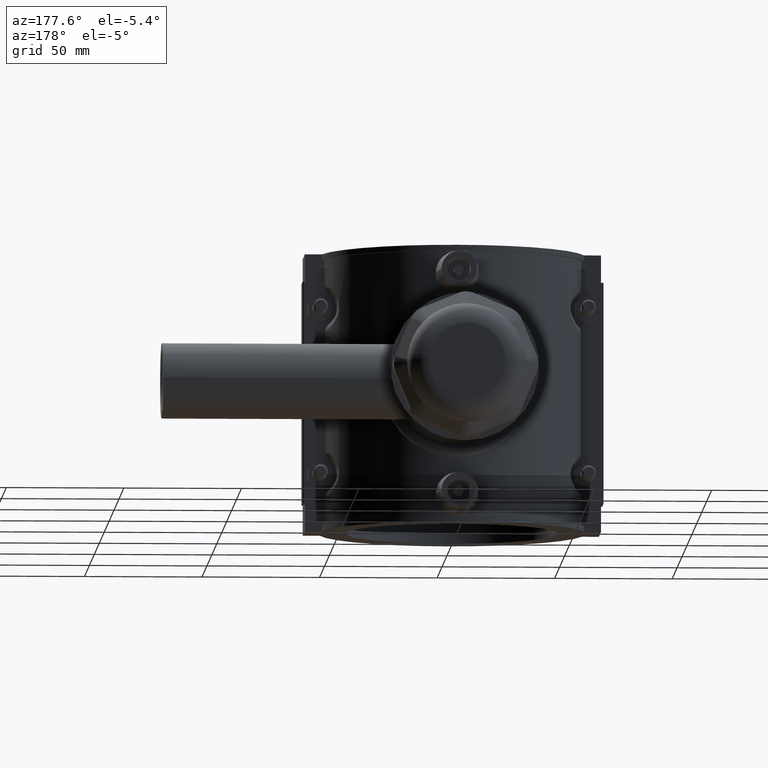
[diagram: clean part render]
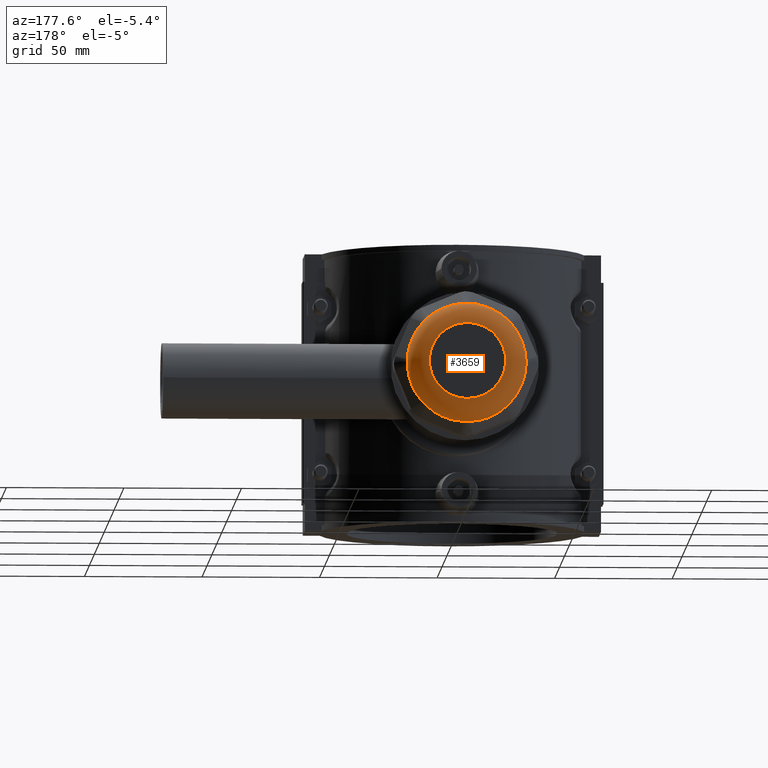
[diagram: same view with one face highlighted and labeled with its STEP entity id]
A machine part, auxiliary view. The second image highlights one B-rep face of the part: STEP entity #3659.
In plain terms, the highlighted toroidal blend (fillet) surface has major radius 16.258 mm and minor (blend) radius 9 mm.
Its self-contained STEP definition (entity closure, byte-faithful):
#15=TOROIDAL_SURFACE('',#3901,16.2579868038568,9.);
#802=CIRCLE('',#3874,25.2);
#803=CIRCLE('',#3876,25.2);
#804=CIRCLE('',#3878,25.2);
#805=CIRCLE('',#3880,25.2);
#806=CIRCLE('',#3882,25.2);
#807=CIRCLE('',#3884,25.2);
#808=CIRCLE('',#3886,25.2);
#809=CIRCLE('',#3888,25.2);
#814=CIRCLE('',#3902,16.2579868038568);
#911=FACE_BOUND('',#1241,.T.);
#1010=FACE_OUTER_BOUND('',#1240,.T.);
#1240=EDGE_LOOP('',(#2662,#2663,#2664,#2665,#2666,#2667,#2668,#2669,#2670,
#2671,#2672,#2673,#2674,#2675,#2676,#2677,#2678,#2679,#2680,#2681,#2682,
#2683,#2684,#2685,#2686,#2687,#2688,#2689,#2690,#2691,#2692,#2693));
#1241=EDGE_LOOP('',(#2694));
#1466=B_SPLINE_CURVE_WITH_KNOTS('',3,(#5428,#5429,#5430,#5431),
 .UNSPECIFIED.,.F.,.F.,(4,4),(1.10952605519266,1.15275513340129),
 .UNSPECIFIED.);
#1468=B_SPLINE_CURVE_WITH_KNOTS('',3,(#5464,#5465,#5466,#5467),
 .UNSPECIFIED.,.F.,.F.,(4,4),(0.,0.0290429635473204),.UNSPECIFIED.);
#1470=B_SPLINE_CURVE_WITH_KNOTS('',3,(#5475,#5476,#5477,#5478,#5479,#5480,
#5481,#5482,#5483,#5484,#5485,#5486,#5487,#5488,#5489),.UNSPECIFIED.,.F.,
 .F.,(4,2,2,3,2,2,4),(5.42572388868574,5.52255212576806,5.88350145939651,
6.24445079302495,6.6054001266534,6.96634946028184,7.06317769736321),
 .UNSPECIFIED.);
#1471=B_SPLINE_CURVE_WITH_KNOTS('',3,(#5508,#5509,#5510,#5511),
 .UNSPECIFIED.,.F.,.F.,(4,4),(1.10952605519264,1.15275513340128),
 .UNSPECIFIED.);
#1473=B_SPLINE_CURVE_WITH_KNOTS('',3,(#5544,#5545,#5546,#5547),
 .UNSPECIFIED.,.F.,.F.,(4,4),(0.,0.0290429635473214),.UNSPECIFIED.);
#1475=B_SPLINE_CURVE_WITH_KNOTS('',3,(#5555,#5556,#5557,#5558,#5559,#5560,
#5561,#5562,#5563,#5564,#5565,#5566,#5567,#5568,#5569),.UNSPECIFIED.,.F.,
 .F.,(4,2,2,3,2,2,4),(5.4257238886857,5.52255212576751,5.8835014593962,
6.2444507930249,6.60540012665359,6.96634946028229,7.06317769736314),
 .UNSPECIFIED.);
#1476=B_SPLINE_CURVE_WITH_KNOTS('',3,(#5588,#5589,#5590,#5591),
 .UNSPECIFIED.,.F.,.F.,(4,4),(1.10952605519268,1.15275513340131),
 .UNSPECIFIED.);
#1478=B_SPLINE_CURVE_WITH_KNOTS('',3,(#5624,#5625,#5626,#5627),
 .UNSPECIFIED.,.F.,.F.,(4,4),(0.,0.0290429635473215),.UNSPECIFIED.);
#1480=B_SPLINE_CURVE_WITH_KNOTS('',3,(#5635,#5636,#5637,#5638,#5639,#5640,
#5641,#5642,#5643,#5644,#5645,#5646,#5647,#5648,#5649),.UNSPECIFIED.,.F.,
 .F.,(4,2,2,3,2,2,4),(5.42572388868572,5.52255212576752,5.88350145939621,
6.24445079302491,6.60540012665361,6.9663494602823,7.06317769736315),
 .UNSPECIFIED.);
#1481=B_SPLINE_CURVE_WITH_KNOTS('',3,(#5668,#5669,#5670,#5671),
 .UNSPECIFIED.,.F.,.F.,(4,4),(1.10952605519258,1.15275513340122),
 .UNSPECIFIED.);
#1483=B_SPLINE_CURVE_WITH_KNOTS('',3,(#5704,#5705,#5706,#5707),
 .UNSPECIFIED.,.F.,.F.,(4,4),(0.,0.0290429635473217),.UNSPECIFIED.);
#1485=B_SPLINE_CURVE_WITH_KNOTS('',3,(#5715,#5716,#5717,#5718,#5719,#5720,
#5721,#5722,#5723,#5724,#5725,#5726,#5727,#5728,#5729),.UNSPECIFIED.,.F.,
 .F.,(4,2,2,3,2,2,4),(5.42572388868572,5.52255212576753,5.88350145939622,
6.24445079302491,6.60540012665361,6.9663494602823,7.06317769736315),
 .UNSPECIFIED.);
#1486=B_SPLINE_CURVE_WITH_KNOTS('',3,(#5748,#5749,#5750,#5751),
 .UNSPECIFIED.,.F.,.F.,(4,4),(1.10952605519257,1.15275513340121),
 .UNSPECIFIED.);
#1488=B_SPLINE_CURVE_WITH_KNOTS('',3,(#5784,#5785,#5786,#5787),
 .UNSPECIFIED.,.F.,.F.,(4,4),(0.,0.0290429635473215),.UNSPECIFIED.);
#1490=B_SPLINE_CURVE_WITH_KNOTS('',3,(#5795,#5796,#5797,#5798,#5799,#5800,
#5801,#5802,#5803,#5804,#5805,#5806,#5807,#5808,#5809),.UNSPECIFIED.,.F.,
 .F.,(4,2,2,3,2,2,4),(5.42572388868571,5.52255212576752,5.88350145939622,
6.24445079302491,6.6054001266536,6.9663494602823,7.06317769736315),
 .UNSPECIFIED.);
#1491=B_SPLINE_CURVE_WITH_KNOTS('',3,(#5828,#5829,#5830,#5831),
 .UNSPECIFIED.,.F.,.F.,(4,4),(1.10952605519261,1.15275513340124),
 .UNSPECIFIED.);
#1493=B_SPLINE_CURVE_WITH_KNOTS('',3,(#5864,#5865,#5866,#5867),
 .UNSPECIFIED.,.F.,.F.,(4,4),(0.,0.0290429635473217),.UNSPECIFIED.);
#1495=B_SPLINE_CURVE_WITH_KNOTS('',3,(#5875,#5876,#5877,#5878,#5879,#5880,
#5881,#5882,#5883,#5884,#5885,#5886,#5887,#5888,#5889),.UNSPECIFIED.,.F.,
 .F.,(4,2,2,3,2,2,4),(5.42572388868574,5.52255212576806,5.8835014593965,
6.24445079302494,6.60540012665339,6.96634946028183,7.0631776973632),
 .UNSPECIFIED.);
#1496=B_SPLINE_CURVE_WITH_KNOTS('',3,(#5908,#5909,#5910,#5911),
 .UNSPECIFIED.,.F.,.F.,(4,4),(1.10952605519264,1.15275513340129),
 .UNSPECIFIED.);
#1498=B_SPLINE_CURVE_WITH_KNOTS('',3,(#5944,#5945,#5946,#5947),
 .UNSPECIFIED.,.F.,.F.,(4,4),(0.,0.0290429635473226),.UNSPECIFIED.);
#1500=B_SPLINE_CURVE_WITH_KNOTS('',3,(#5955,#5956,#5957,#5958,#5959,#5960,
#5961,#5962,#5963,#5964,#5965,#5966,#5967,#5968,#5969),.UNSPECIFIED.,.F.,
 .F.,(4,2,2,3,2,2,4),(5.42572388868571,5.52255212576752,5.88350145939622,
6.24445079302491,6.6054001266536,6.96634946028229,7.06317769736315),
 .UNSPECIFIED.);
#1501=B_SPLINE_CURVE_WITH_KNOTS('',3,(#5988,#5989,#5990,#5991),
 .UNSPECIFIED.,.F.,.F.,(4,4),(1.10952605519263,1.15275513340125),
 .UNSPECIFIED.);
#1503=B_SPLINE_CURVE_WITH_KNOTS('',3,(#6015,#6016,#6017,#6018),
 .UNSPECIFIED.,.F.,.F.,(4,4),(0.,0.0290429635473208),.UNSPECIFIED.);
#1505=B_SPLINE_CURVE_WITH_KNOTS('',3,(#6026,#6027,#6028,#6029,#6030,#6031,
#6032,#6033,#6034,#6035,#6036,#6037,#6038,#6039,#6040),.UNSPECIFIED.,.F.,
 .F.,(4,2,2,3,2,2,4),(5.42572388868569,5.52255212576751,5.8835014593962,
6.24445079302489,6.60540012665358,6.96634946028228,7.06317769736313),
 .UNSPECIFIED.);
#1584=VERTEX_POINT('',#5404);
#1585=VERTEX_POINT('',#5406);
#1587=VERTEX_POINT('',#5427);
#1590=VERTEX_POINT('',#5440);
#1591=VERTEX_POINT('',#5442);
#1593=VERTEX_POINT('',#5463);
#1595=VERTEX_POINT('',#5507);
#1598=VERTEX_POINT('',#5520);
#1599=VERTEX_POINT('',#5522);
#1601=VERTEX_POINT('',#5543);
#1603=VERTEX_POINT('',#5587);
#1606=VERTEX_POINT('',#5600);
#1607=VERTEX_POINT('',#5602);
#1609=VERTEX_POINT('',#5623);
#1611=VERTEX_POINT('',#5667);
#1614=VERTEX_POINT('',#5680);
#1615=VERTEX_POINT('',#5682);
#1617=VERTEX_POINT('',#5703);
#1619=VERTEX_POINT('',#5747);
#1622=VERTEX_POINT('',#5760);
#1623=VERTEX_POINT('',#5762);
#1625=VERTEX_POINT('',#5783);
#1627=VERTEX_POINT('',#5827);
#1630=VERTEX_POINT('',#5840);
#1631=VERTEX_POINT('',#5842);
#1633=VERTEX_POINT('',#5863);
#1635=VERTEX_POINT('',#5907);
#1638=VERTEX_POINT('',#5920);
#1639=VERTEX_POINT('',#5922);
#1641=VERTEX_POINT('',#5943);
#1643=VERTEX_POINT('',#5987);
#1645=VERTEX_POINT('',#6014);
#1656=VERTEX_POINT('',#6093);
#1941=EDGE_CURVE('',#1585,#1587,#1466,.F.);
#1948=EDGE_CURVE('',#1593,#1590,#1468,.F.);
#1951=EDGE_CURVE('',#1587,#1593,#1470,.F.);
#1953=EDGE_CURVE('',#1591,#1595,#1471,.F.);
#1960=EDGE_CURVE('',#1601,#1598,#1473,.F.);
#1963=EDGE_CURVE('',#1595,#1601,#1475,.F.);
#1965=EDGE_CURVE('',#1599,#1603,#1476,.F.);
#1972=EDGE_CURVE('',#1609,#1606,#1478,.F.);
#1975=EDGE_CURVE('',#1603,#1609,#1480,.F.);
#1977=EDGE_CURVE('',#1607,#1611,#1481,.F.);
#1984=EDGE_CURVE('',#1617,#1614,#1483,.F.);
#1987=EDGE_CURVE('',#1611,#1617,#1485,.F.);
#1989=EDGE_CURVE('',#1615,#1619,#1486,.F.);
#1996=EDGE_CURVE('',#1625,#1622,#1488,.F.);
#1999=EDGE_CURVE('',#1619,#1625,#1490,.F.);
#2001=EDGE_CURVE('',#1623,#1627,#1491,.F.);
#2008=EDGE_CURVE('',#1633,#1630,#1493,.F.);
#2011=EDGE_CURVE('',#1627,#1633,#1495,.F.);
#2013=EDGE_CURVE('',#1631,#1635,#1496,.F.);
#2020=EDGE_CURVE('',#1641,#1638,#1498,.F.);
#2023=EDGE_CURVE('',#1635,#1641,#1500,.F.);
#2025=EDGE_CURVE('',#1639,#1643,#1501,.F.);
#2028=EDGE_CURVE('',#1645,#1584,#1503,.F.);
#2031=EDGE_CURVE('',#1643,#1645,#1505,.F.);
#2033=EDGE_CURVE('',#1607,#1606,#802,.T.);
#2034=EDGE_CURVE('',#1599,#1598,#803,.T.);
#2035=EDGE_CURVE('',#1591,#1590,#804,.T.);
#2036=EDGE_CURVE('',#1585,#1584,#805,.T.);
#2037=EDGE_CURVE('',#1639,#1638,#806,.T.);
#2038=EDGE_CURVE('',#1631,#1630,#807,.T.);
#2039=EDGE_CURVE('',#1623,#1622,#808,.T.);
#2040=EDGE_CURVE('',#1615,#1614,#809,.T.);
#2058=EDGE_CURVE('',#1656,#1656,#814,.T.);
#2662=ORIENTED_EDGE('',*,*,#2035,.T.);
#2663=ORIENTED_EDGE('',*,*,#1948,.F.);
#2664=ORIENTED_EDGE('',*,*,#1951,.F.);
#2665=ORIENTED_EDGE('',*,*,#1941,.F.);
#2666=ORIENTED_EDGE('',*,*,#2036,.T.);
#2667=ORIENTED_EDGE('',*,*,#2028,.F.);
#2668=ORIENTED_EDGE('',*,*,#2031,.F.);
#2669=ORIENTED_EDGE('',*,*,#2025,.F.);
#2670=ORIENTED_EDGE('',*,*,#2037,.T.);
#2671=ORIENTED_EDGE('',*,*,#2020,.F.);
#2672=ORIENTED_EDGE('',*,*,#2023,.F.);
#2673=ORIENTED_EDGE('',*,*,#2013,.F.);
#2674=ORIENTED_EDGE('',*,*,#2038,.T.);
#2675=ORIENTED_EDGE('',*,*,#2008,.F.);
#2676=ORIENTED_EDGE('',*,*,#2011,.F.);
#2677=ORIENTED_EDGE('',*,*,#2001,.F.);
#2678=ORIENTED_EDGE('',*,*,#2039,.T.);
#2679=ORIENTED_EDGE('',*,*,#1996,.F.);
#2680=ORIENTED_EDGE('',*,*,#1999,.F.);
#2681=ORIENTED_EDGE('',*,*,#1989,.F.);
#2682=ORIENTED_EDGE('',*,*,#2040,.T.);
#2683=ORIENTED_EDGE('',*,*,#1984,.F.);
#2684=ORIENTED_EDGE('',*,*,#1987,.F.);
#2685=ORIENTED_EDGE('',*,*,#1977,.F.);
#2686=ORIENTED_EDGE('',*,*,#2033,.T.);
#2687=ORIENTED_EDGE('',*,*,#1972,.F.);
#2688=ORIENTED_EDGE('',*,*,#1975,.F.);
#2689=ORIENTED_EDGE('',*,*,#1965,.F.);
#2690=ORIENTED_EDGE('',*,*,#2034,.T.);
#2691=ORIENTED_EDGE('',*,*,#1960,.F.);
#2692=ORIENTED_EDGE('',*,*,#1963,.F.);
#2693=ORIENTED_EDGE('',*,*,#1953,.F.);
#2694=ORIENTED_EDGE('',*,*,#2058,.T.);
#3659=ADVANCED_FACE('',(#1010,#911),#15,.T.);
#3874=AXIS2_PLACEMENT_3D('',#6043,#4285,#4286);
#3876=AXIS2_PLACEMENT_3D('',#6045,#4289,#4290);
#3878=AXIS2_PLACEMENT_3D('',#6047,#4293,#4294);
#3880=AXIS2_PLACEMENT_3D('',#6049,#4297,#4298);
#3882=AXIS2_PLACEMENT_3D('',#6051,#4301,#4302);
#3884=AXIS2_PLACEMENT_3D('',#6053,#4305,#4306);
#3886=AXIS2_PLACEMENT_3D('',#6055,#4309,#4310);
#3888=AXIS2_PLACEMENT_3D('',#6057,#4313,#4314);
#3901=AXIS2_PLACEMENT_3D('',#6092,#4352,#4353);
#3902=AXIS2_PLACEMENT_3D('',#6094,#4354,#4355);
#4285=DIRECTION('center_axis',(0.,1.,3.06161699786838E-16));
#4286=DIRECTION('ref_axis',(1.,0.,0.));
#4289=DIRECTION('center_axis',(0.,1.,3.06161699786838E-16));
#4290=DIRECTION('ref_axis',(1.,0.,0.));
#4293=DIRECTION('center_axis',(0.,1.,3.06161699786838E-16));
#4294=DIRECTION('ref_axis',(1.,0.,0.));
#4297=DIRECTION('center_axis',(0.,1.,3.06161699786838E-16));
#4298=DIRECTION('ref_axis',(1.,0.,0.));
#4301=DIRECTION('center_axis',(0.,1.,3.06161699786838E-16));
#4302=DIRECTION('ref_axis',(1.,0.,0.));
#4305=DIRECTION('center_axis',(0.,1.,3.06161699786838E-16));
#4306=DIRECTION('ref_axis',(1.,0.,0.));
#4309=DIRECTION('center_axis',(0.,1.,3.06161699786838E-16));
#4310=DIRECTION('ref_axis',(1.,0.,0.));
#4313=DIRECTION('center_axis',(0.,1.,3.06161699786838E-16));
#4314=DIRECTION('ref_axis',(1.,0.,0.));
#4352=DIRECTION('center_axis',(0.,1.,3.06161699786838E-16));
#4353=DIRECTION('ref_axis',(-6.12323399573677E-17,0.,1.));
#4354=DIRECTION('center_axis',(0.,-1.,-3.06161699786838E-16));
#4355=DIRECTION('ref_axis',(-6.12323399573677E-17,-2.73151414875497E-16,
1.));
#5404=CARTESIAN_POINT('',(-18.604610825229,151.02,-16.9973073173891));
#5406=CARTESIAN_POINT('',(-16.9973073173891,151.02,-18.604610825229));
#5427=CARTESIAN_POINT('',(-16.7988653715453,150.9268598554,-18.7975784150959));
#5428=CARTESIAN_POINT('Ctrl Pts',(-16.7988653715453,150.9268598554,-18.7975784150959));
#5429=CARTESIAN_POINT('Ctrl Pts',(-16.8649558434214,150.960459882441,-18.7338344381034));
#5430=CARTESIAN_POINT('Ctrl Pts',(-16.9310765904413,150.991626099234,-18.6695036300166));
#5431=CARTESIAN_POINT('Ctrl Pts',(-16.9973073173891,151.02,-18.604610825229));
#5440=CARTESIAN_POINT('',(-1.1365352098185,151.02,-25.1743577418937));
#5442=CARTESIAN_POINT('',(1.13653520981854,151.02,-25.1743577418937));
#5463=CARTESIAN_POINT('',(-1.41330354674063,150.9268598554,-25.1704867876597));
#5464=CARTESIAN_POINT('Ctrl Pts',(-1.13653520981851,151.02,-25.1743577418937));
#5465=CARTESIAN_POINT('Ctrl Pts',(-1.22924615531664,150.991628361648,-25.1734117634958));
#5466=CARTESIAN_POINT('Ctrl Pts',(-1.32148682035758,150.960464372073,-25.1721452542392));
#5467=CARTESIAN_POINT('Ctrl Pts',(-1.41330354674063,150.9268598554,-25.1704867876597));
#5475=CARTESIAN_POINT('Ctrl Pts',(-1.41330354674063,150.9268598554,-25.1704867876597));
#5476=CARTESIAN_POINT('Ctrl Pts',(-1.74363233739201,150.806006010016,-25.164471382149));
#5477=CARTESIAN_POINT('Ctrl Pts',(-2.07100356622889,150.695636578499,-25.148332791059));
#5478=CARTESIAN_POINT('Ctrl Pts',(-3.52297540127232,150.238671580925,-25.0415217139813));
#5479=CARTESIAN_POINT('Ctrl Pts',(-4.78921885989863,149.944490527602,-24.8354457777419));
#5480=CARTESIAN_POINT('Ctrl Pts',(-7.30192938724675,149.565115597336,-24.2052794645029));
#5481=CARTESIAN_POINT('Ctrl Pts',(-8.54846487407608,149.479294130159,-23.7818400465694));
#5482=CARTESIAN_POINT('Ctrl Pts',(-9.66004387945244,149.479294130159,-23.3214089468933));
#5483=CARTESIAN_POINT('Ctrl Pts',(-10.7716228848288,149.479294130159,-22.8609778472172));
#5484=CARTESIAN_POINT('Ctrl Pts',(-11.952473464398,149.565115597336,-22.278961035333));
#5485=CARTESIAN_POINT('Ctrl Pts',(-14.1748229908113,149.944490527602,-20.9478012556529));
#5486=CARTESIAN_POINT('Ctrl Pts',(-15.2159100189933,150.238671580925,-20.1981496113794));
#5487=CARTESIAN_POINT('Ctrl Pts',(-16.3181359865496,150.695636578498,-19.2469773176378));
#5488=CARTESIAN_POINT('Ctrl Pts',(-16.5610341096215,150.806006010014,-19.0269026089627));
#5489=CARTESIAN_POINT('Ctrl Pts',(-16.7988653715382,150.926859855397,-18.7975784151027));
#5507=CARTESIAN_POINT('',(1.41330354674067,150.9268598554,-25.1704867876597));
#5508=CARTESIAN_POINT('Ctrl Pts',(1.41330354674067,150.9268598554,-25.1704867876597));
#5509=CARTESIAN_POINT('Ctrl Pts',(1.32149672751404,150.960459882441,-25.1721460101039));
#5510=CARTESIAN_POINT('Ctrl Pts',(1.22925354828181,150.991626099234,-25.1734116880614));
#5511=CARTESIAN_POINT('Ctrl Pts',(1.13653520981855,151.02,-25.1743577418937));
#5520=CARTESIAN_POINT('',(16.9973073173892,151.02,-18.604610825229));
#5522=CARTESIAN_POINT('',(18.6046108252291,151.02,-16.9973073173891));
#5543=CARTESIAN_POINT('',(16.7988653715453,150.9268598554,-18.7975784150959));
#5544=CARTESIAN_POINT('Ctrl Pts',(16.9973073173892,151.02,-18.604610825229));
#5545=CARTESIAN_POINT('Ctrl Pts',(16.9310818713972,150.991628361648,-18.6694984557409));
#5546=CARTESIAN_POINT('Ctrl Pts',(16.8649623143618,150.960464372073,-18.7338268982088));
#5547=CARTESIAN_POINT('Ctrl Pts',(16.7988653715453,150.9268598554,-18.7975784150959));
#5555=CARTESIAN_POINT('Ctrl Pts',(16.7988653715453,150.9268598554,-18.7975784150959));
#5556=CARTESIAN_POINT('Ctrl Pts',(16.5610341096276,150.806006010017,-19.0269026089571));
#5557=CARTESIAN_POINT('Ctrl Pts',(16.3181359865546,150.6956365785,-19.2469773176334));
#5558=CARTESIAN_POINT('Ctrl Pts',(15.215910018997,150.238671580926,-20.1981496113766));
#5559=CARTESIAN_POINT('Ctrl Pts',(14.1748229908145,149.944490527603,-20.9478012556508));
#5560=CARTESIAN_POINT('Ctrl Pts',(11.9524734643999,149.565115597337,-22.278961035332));
#5561=CARTESIAN_POINT('Ctrl Pts',(10.7716228848291,149.47929413016,-22.8609778472156));
#5562=CARTESIAN_POINT('Ctrl Pts',(9.66004387945196,149.47929413016,-23.321408946892));
#5563=CARTESIAN_POINT('Ctrl Pts',(8.54846487407483,149.47929413016,-23.7818400465684));
#5564=CARTESIAN_POINT('Ctrl Pts',(7.30192938724477,149.565115597337,-24.2052794645035));
#5565=CARTESIAN_POINT('Ctrl Pts',(4.78921885989492,149.944490527603,-24.8354457777427));
#5566=CARTESIAN_POINT('Ctrl Pts',(3.52297540126777,150.238671580926,-25.0415217139819));
#5567=CARTESIAN_POINT('Ctrl Pts',(2.0710035662283,150.695636578499,-25.148332791059));
#5568=CARTESIAN_POINT('Ctrl Pts',(1.74363233739671,150.806006010015,-25.1644713821487));
#5569=CARTESIAN_POINT('Ctrl Pts',(1.41330354675046,150.926859855397,-25.1704867876595));
#5587=CARTESIAN_POINT('',(18.7975784150959,150.9268598554,-16.7988653715452));
#5588=CARTESIAN_POINT('Ctrl Pts',(18.7975784150959,150.9268598554,-16.7988653715452));
#5589=CARTESIAN_POINT('Ctrl Pts',(18.7338344381034,150.960459882441,-16.8649558434214));
#5590=CARTESIAN_POINT('Ctrl Pts',(18.6695036300167,150.991626099234,-16.9310765904412));
#5591=CARTESIAN_POINT('Ctrl Pts',(18.6046108252291,151.02,-16.9973073173891));
#5600=CARTESIAN_POINT('',(25.1743577418937,151.02,-1.13653520981848));
#5602=CARTESIAN_POINT('',(25.1743577418937,151.02,1.13653520981856));
#5623=CARTESIAN_POINT('',(25.1704867876597,150.9268598554,-1.41330354674061));
#5624=CARTESIAN_POINT('Ctrl Pts',(25.1743577418937,151.02,-1.13653520981848));
#5625=CARTESIAN_POINT('Ctrl Pts',(25.1734117634958,150.991628361648,-1.22924615531661));
#5626=CARTESIAN_POINT('Ctrl Pts',(25.1721452542393,150.960464372073,-1.32148682035756));
#5627=CARTESIAN_POINT('Ctrl Pts',(25.1704867876597,150.9268598554,-1.41330354674061));
#5635=CARTESIAN_POINT('Ctrl Pts',(25.1704867876597,150.9268598554,-1.41330354674062));
#5636=CARTESIAN_POINT('Ctrl Pts',(25.164471382149,150.806006010017,-1.74363233739019));
#5637=CARTESIAN_POINT('Ctrl Pts',(25.1483327910592,150.6956365785,-2.0710035662252));
#5638=CARTESIAN_POINT('Ctrl Pts',(25.041521713982,150.238671580926,-3.5229754012677));
#5639=CARTESIAN_POINT('Ctrl Pts',(24.8354457777427,149.944490527603,-4.78921885989484));
#5640=CARTESIAN_POINT('Ctrl Pts',(24.2052794645036,149.565115597337,-7.30192938724469));
#5641=CARTESIAN_POINT('Ctrl Pts',(23.7818400465685,149.47929413016,-8.54846487407476));
#5642=CARTESIAN_POINT('Ctrl Pts',(23.3214089468921,149.47929413016,-9.66004387945189));
#5643=CARTESIAN_POINT('Ctrl Pts',(22.8609778472157,149.47929413016,-10.771622884829));
#5644=CARTESIAN_POINT('Ctrl Pts',(22.278961035332,149.565115597337,-11.9524734643998));
#5645=CARTESIAN_POINT('Ctrl Pts',(20.9478012556509,149.944490527603,-14.1748229908145));
#5646=CARTESIAN_POINT('Ctrl Pts',(20.1981496113767,150.238671580926,-15.215910018997));
#5647=CARTESIAN_POINT('Ctrl Pts',(19.2469773176354,150.695636578499,-16.3181359865523));
#5648=CARTESIAN_POINT('Ctrl Pts',(19.0269026089615,150.806006010015,-16.5610341096228));
#5649=CARTESIAN_POINT('Ctrl Pts',(18.7975784151027,150.926859855397,-16.7988653715382));
#5667=CARTESIAN_POINT('',(25.1704867876597,150.9268598554,1.41330354674069));
#5668=CARTESIAN_POINT('Ctrl Pts',(25.1704867876597,150.9268598554,1.41330354674069));
#5669=CARTESIAN_POINT('Ctrl Pts',(25.1721460101039,150.960459882441,1.32149672751406));
#5670=CARTESIAN_POINT('Ctrl Pts',(25.1734116880615,150.991626099234,1.22925354828183));
#5671=CARTESIAN_POINT('Ctrl Pts',(25.1743577418937,151.02,1.13653520981857));
#5680=CARTESIAN_POINT('',(18.604610825229,151.02,16.9973073173892));
#5682=CARTESIAN_POINT('',(16.9973073173891,151.02,18.6046108252291));
#5703=CARTESIAN_POINT('',(18.7975784150959,150.9268598554,16.7988653715453));
#5704=CARTESIAN_POINT('Ctrl Pts',(18.604610825229,151.02,16.9973073173892));
#5705=CARTESIAN_POINT('Ctrl Pts',(18.669498455741,150.991628361648,16.9310818713972));
#5706=CARTESIAN_POINT('Ctrl Pts',(18.7338268982089,150.960464372073,16.8649623143619));
#5707=CARTESIAN_POINT('Ctrl Pts',(18.7975784150959,150.9268598554,16.7988653715453));
#5715=CARTESIAN_POINT('Ctrl Pts',(18.7975784150959,150.9268598554,16.7988653715453));
#5716=CARTESIAN_POINT('Ctrl Pts',(19.0269026089572,150.806006010017,16.5610341096276));
#5717=CARTESIAN_POINT('Ctrl Pts',(19.2469773176334,150.6956365785,16.3181359865546));
#5718=CARTESIAN_POINT('Ctrl Pts',(20.1981496113767,150.238671580926,15.215910018997));
#5719=CARTESIAN_POINT('Ctrl Pts',(20.9478012556509,149.944490527603,14.1748229908145));
#5720=CARTESIAN_POINT('Ctrl Pts',(22.278961035332,149.565115597337,11.9524734643999));
#5721=CARTESIAN_POINT('Ctrl Pts',(22.8609778472157,149.47929413016,10.7716228848291));
#5722=CARTESIAN_POINT('Ctrl Pts',(23.3214089468921,149.47929413016,9.66004387945198));
#5723=CARTESIAN_POINT('Ctrl Pts',(23.7818400465685,149.47929413016,8.54846487407486));
#5724=CARTESIAN_POINT('Ctrl Pts',(24.2052794645035,149.565115597337,7.30192938724481));
#5725=CARTESIAN_POINT('Ctrl Pts',(24.8354457777427,149.944490527603,4.78921885989498));
#5726=CARTESIAN_POINT('Ctrl Pts',(25.0415217139819,150.238671580926,3.52297540126784));
#5727=CARTESIAN_POINT('Ctrl Pts',(25.148332791059,150.695636578499,2.07100356622837));
#5728=CARTESIAN_POINT('Ctrl Pts',(25.1644713821487,150.806006010015,1.74363233739676));
#5729=CARTESIAN_POINT('Ctrl Pts',(25.1704867876596,150.926859855397,1.41330354675048));
#5747=CARTESIAN_POINT('',(16.7988653715453,150.9268598554,18.7975784150959));
#5748=CARTESIAN_POINT('Ctrl Pts',(16.7988653715453,150.9268598554,18.797578415096));
#5749=CARTESIAN_POINT('Ctrl Pts',(16.8649558434214,150.960459882441,18.7338344381034));
#5750=CARTESIAN_POINT('Ctrl Pts',(16.9310765904413,150.991626099234,18.6695036300167));
#5751=CARTESIAN_POINT('Ctrl Pts',(16.9973073173891,151.02,18.6046108252291));
#5760=CARTESIAN_POINT('',(1.13653520981851,151.02,25.1743577418937));
#5762=CARTESIAN_POINT('',(-1.13653520981854,151.02,25.1743577418937));
#5783=CARTESIAN_POINT('',(1.41330354674064,150.9268598554,25.1704867876598));
#5784=CARTESIAN_POINT('Ctrl Pts',(1.13653520981851,151.02,25.1743577418937));
#5785=CARTESIAN_POINT('Ctrl Pts',(1.22924615531664,150.991628361648,25.1734117634958));
#5786=CARTESIAN_POINT('Ctrl Pts',(1.32148682035759,150.960464372073,25.1721452542393));
#5787=CARTESIAN_POINT('Ctrl Pts',(1.41330354674064,150.9268598554,25.1704867876598));
#5795=CARTESIAN_POINT('Ctrl Pts',(1.41330354674064,150.9268598554,25.1704867876598));
#5796=CARTESIAN_POINT('Ctrl Pts',(1.74363233739022,150.806006010017,25.164471382149));
#5797=CARTESIAN_POINT('Ctrl Pts',(2.07100356622526,150.6956365785,25.1483327910593));
#5798=CARTESIAN_POINT('Ctrl Pts',(3.52297540126777,150.238671580926,25.041521713982));
#5799=CARTESIAN_POINT('Ctrl Pts',(4.78921885989491,149.944490527603,24.8354457777427));
#5800=CARTESIAN_POINT('Ctrl Pts',(7.30192938724475,149.565115597337,24.2052794645036));
#5801=CARTESIAN_POINT('Ctrl Pts',(8.5484648740748,149.47929413016,23.7818400465685));
#5802=CARTESIAN_POINT('Ctrl Pts',(9.66004387945193,149.47929413016,23.3214089468921));
#5803=CARTESIAN_POINT('Ctrl Pts',(10.7716228848291,149.47929413016,22.8609778472157));
#5804=CARTESIAN_POINT('Ctrl Pts',(11.9524734643998,149.565115597337,22.2789610353321));
#5805=CARTESIAN_POINT('Ctrl Pts',(14.1748229908145,149.944490527603,20.9478012556509));
#5806=CARTESIAN_POINT('Ctrl Pts',(15.215910018997,150.238671580926,20.1981496113767));
#5807=CARTESIAN_POINT('Ctrl Pts',(16.3181359865523,150.695636578499,19.2469773176354));
#5808=CARTESIAN_POINT('Ctrl Pts',(16.5610341096228,150.806006010015,19.0269026089616));
#5809=CARTESIAN_POINT('Ctrl Pts',(16.7988653715382,150.926859855397,18.7975784151027));
#5827=CARTESIAN_POINT('',(-1.41330354674067,150.9268598554,25.1704867876598));
#5828=CARTESIAN_POINT('Ctrl Pts',(-1.41330354674067,150.9268598554,25.1704867876598));
#5829=CARTESIAN_POINT('Ctrl Pts',(-1.32149672751404,150.960459882441,25.172146010104));
#5830=CARTESIAN_POINT('Ctrl Pts',(-1.22925354828181,150.991626099234,25.1734116880615));
#5831=CARTESIAN_POINT('Ctrl Pts',(-1.13653520981854,151.02,25.1743577418937));
#5840=CARTESIAN_POINT('',(-16.9973073173891,151.02,18.6046108252291));
#5842=CARTESIAN_POINT('',(-18.604610825229,151.02,16.9973073173892));
#5863=CARTESIAN_POINT('',(-16.7988653715453,150.9268598554,18.7975784150959));
#5864=CARTESIAN_POINT('Ctrl Pts',(-16.9973073173891,151.02,18.6046108252291));
#5865=CARTESIAN_POINT('Ctrl Pts',(-16.9310818713972,150.991628361648,18.669498455741));
#5866=CARTESIAN_POINT('Ctrl Pts',(-16.8649623143618,150.960464372073,18.7338268982089));
#5867=CARTESIAN_POINT('Ctrl Pts',(-16.7988653715453,150.9268598554,18.7975784150959));
#5875=CARTESIAN_POINT('Ctrl Pts',(-16.7988653715453,150.9268598554,18.7975784150959));
#5876=CARTESIAN_POINT('Ctrl Pts',(-16.5610341096263,150.806006010016,19.0269026089585));
#5877=CARTESIAN_POINT('Ctrl Pts',(-16.3181359865519,150.695636578499,19.2469773176359));
#5878=CARTESIAN_POINT('Ctrl Pts',(-15.2159100189933,150.238671580925,20.1981496113794));
#5879=CARTESIAN_POINT('Ctrl Pts',(-14.1748229908113,149.944490527602,20.947801255653));
#5880=CARTESIAN_POINT('Ctrl Pts',(-11.952473464398,149.565115597336,22.278961035333));
#5881=CARTESIAN_POINT('Ctrl Pts',(-10.7716228848288,149.479294130159,22.8609778472172));
#5882=CARTESIAN_POINT('Ctrl Pts',(-9.66004387945246,149.479294130159,23.3214089468933));
#5883=CARTESIAN_POINT('Ctrl Pts',(-8.5484648740761,149.479294130159,23.7818400465694));
#5884=CARTESIAN_POINT('Ctrl Pts',(-7.30192938724677,149.565115597336,24.2052794645029));
#5885=CARTESIAN_POINT('Ctrl Pts',(-4.78921885989866,149.944490527602,24.835445777742));
#5886=CARTESIAN_POINT('Ctrl Pts',(-3.52297540127236,150.238671580925,25.0415217139813));
#5887=CARTESIAN_POINT('Ctrl Pts',(-2.07100356623197,150.695636578498,25.1483327910589));
#5888=CARTESIAN_POINT('Ctrl Pts',(-1.74363233739852,150.806006010014,25.1644713821487));
#5889=CARTESIAN_POINT('Ctrl Pts',(-1.41330354675045,150.926859855397,25.1704867876596));
#5907=CARTESIAN_POINT('',(-18.7975784150959,150.9268598554,16.7988653715453));
#5908=CARTESIAN_POINT('Ctrl Pts',(-18.7975784150959,150.9268598554,16.7988653715453));
#5909=CARTESIAN_POINT('Ctrl Pts',(-18.7338344381034,150.960459882441,16.8649558434214));
#5910=CARTESIAN_POINT('Ctrl Pts',(-18.6695036300166,150.991626099234,16.9310765904413));
#5911=CARTESIAN_POINT('Ctrl Pts',(-18.6046108252291,151.02,16.9973073173892));
#5920=CARTESIAN_POINT('',(-25.1743577418937,151.02,1.13653520981855));
#5922=CARTESIAN_POINT('',(-25.1743577418937,151.02,-1.1365352098185));
#5943=CARTESIAN_POINT('',(-25.1704867876597,150.9268598554,1.41330354674068));
#5944=CARTESIAN_POINT('Ctrl Pts',(-25.1743577418937,151.02,1.13653520981855));
#5945=CARTESIAN_POINT('Ctrl Pts',(-25.1734117634958,150.991628361648,1.22924615531668));
#5946=CARTESIAN_POINT('Ctrl Pts',(-25.1721452542393,150.960464372073,1.32148682035763));
#5947=CARTESIAN_POINT('Ctrl Pts',(-25.1704867876597,150.9268598554,1.41330354674068));
#5955=CARTESIAN_POINT('Ctrl Pts',(-25.1704867876597,150.9268598554,1.41330354674068));
#5956=CARTESIAN_POINT('Ctrl Pts',(-25.164471382149,150.806006010017,1.74363233739029));
#5957=CARTESIAN_POINT('Ctrl Pts',(-25.1483327910592,150.6956365785,2.07100356622532));
#5958=CARTESIAN_POINT('Ctrl Pts',(-25.041521713982,150.238671580926,3.52297540126783));
#5959=CARTESIAN_POINT('Ctrl Pts',(-24.8354457777427,149.944490527603,4.78921885989497));
#5960=CARTESIAN_POINT('Ctrl Pts',(-24.2052794645036,149.565115597337,7.30192938724479));
#5961=CARTESIAN_POINT('Ctrl Pts',(-23.7818400465685,149.47929413016,8.54846487407484));
#5962=CARTESIAN_POINT('Ctrl Pts',(-23.3214089468921,149.47929413016,9.66004387945196));
#5963=CARTESIAN_POINT('Ctrl Pts',(-22.8609778472157,149.47929413016,10.7716228848291));
#5964=CARTESIAN_POINT('Ctrl Pts',(-22.2789610353321,149.565115597337,11.9524734643999));
#5965=CARTESIAN_POINT('Ctrl Pts',(-20.9478012556509,149.944490527603,14.1748229908145));
#5966=CARTESIAN_POINT('Ctrl Pts',(-20.1981496113767,150.238671580926,15.215910018997));
#5967=CARTESIAN_POINT('Ctrl Pts',(-19.2469773176354,150.695636578499,16.3181359865523));
#5968=CARTESIAN_POINT('Ctrl Pts',(-19.0269026089615,150.806006010015,16.5610341096228));
#5969=CARTESIAN_POINT('Ctrl Pts',(-18.7975784151027,150.926859855397,16.7988653715383));
#5987=CARTESIAN_POINT('',(-25.1704867876597,150.9268598554,-1.41330354674063));
#5988=CARTESIAN_POINT('Ctrl Pts',(-25.1704867876597,150.9268598554,-1.41330354674063));
#5989=CARTESIAN_POINT('Ctrl Pts',(-25.1721460101039,150.960459882441,-1.321496727514));
#5990=CARTESIAN_POINT('Ctrl Pts',(-25.1734116880615,150.991626099234,-1.22925354828176));
#5991=CARTESIAN_POINT('Ctrl Pts',(-25.1743577418937,151.02,-1.1365352098185));
#6014=CARTESIAN_POINT('',(-18.7975784150959,150.9268598554,-16.7988653715453));
#6015=CARTESIAN_POINT('Ctrl Pts',(-18.604610825229,151.02,-16.9973073173891));
#6016=CARTESIAN_POINT('Ctrl Pts',(-18.669498455741,150.991628361648,-16.9310818713971));
#6017=CARTESIAN_POINT('Ctrl Pts',(-18.7338268982088,150.960464372073,-16.8649623143618));
#6018=CARTESIAN_POINT('Ctrl Pts',(-18.7975784150959,150.9268598554,-16.7988653715452));
#6026=CARTESIAN_POINT('Ctrl Pts',(-18.7975784150959,150.9268598554,-16.7988653715453));
#6027=CARTESIAN_POINT('Ctrl Pts',(-19.0269026089572,150.806006010017,-16.5610341096276));
#6028=CARTESIAN_POINT('Ctrl Pts',(-19.2469773176334,150.6956365785,-16.3181359865546));
#6029=CARTESIAN_POINT('Ctrl Pts',(-20.1981496113767,150.238671580926,-15.2159100189969));
#6030=CARTESIAN_POINT('Ctrl Pts',(-20.9478012556509,149.944490527603,-14.1748229908144));
#6031=CARTESIAN_POINT('Ctrl Pts',(-22.278961035332,149.565115597337,-11.9524734643998));
#6032=CARTESIAN_POINT('Ctrl Pts',(-22.8609778472157,149.47929413016,-10.771622884829));
#6033=CARTESIAN_POINT('Ctrl Pts',(-23.3214089468921,149.47929413016,-9.66004387945191));
#6034=CARTESIAN_POINT('Ctrl Pts',(-23.7818400465685,149.47929413016,-8.54846487407479));
#6035=CARTESIAN_POINT('Ctrl Pts',(-24.2052794645035,149.565115597337,-7.30192938724474));
#6036=CARTESIAN_POINT('Ctrl Pts',(-24.8354457777427,149.944490527603,-4.78921885989492));
#6037=CARTESIAN_POINT('Ctrl Pts',(-25.041521713982,150.238671580926,-3.52297540126778));
#6038=CARTESIAN_POINT('Ctrl Pts',(-25.148332791059,150.695636578499,-2.0710035662283));
#6039=CARTESIAN_POINT('Ctrl Pts',(-25.1644713821487,150.806006010015,-1.7436323373967));
#6040=CARTESIAN_POINT('Ctrl Pts',(-25.1704867876595,150.926859855397,-1.41330354675042));
#6043=CARTESIAN_POINT('Origin',(0.,151.02,3.24592634114006E-14));
#6045=CARTESIAN_POINT('Origin',(0.,151.02,3.24592634114006E-14));
#6047=CARTESIAN_POINT('Origin',(0.,151.02,3.24592634114006E-14));
#6049=CARTESIAN_POINT('Origin',(0.,151.02,3.24592634114006E-14));
#6051=CARTESIAN_POINT('Origin',(0.,151.02,3.24592634114006E-14));
#6053=CARTESIAN_POINT('Origin',(0.,151.02,3.24592634114006E-14));
#6055=CARTESIAN_POINT('Origin',(0.,151.02,3.24592634114006E-14));
#6057=CARTESIAN_POINT('Origin',(0.,151.02,3.24592634114006E-14));
#6092=CARTESIAN_POINT('Origin',(0.,150.,3.2146978477618E-14));
#6093=CARTESIAN_POINT('',(2.98654372498846E-15,159.,-16.2579868038567));
#6094=CARTESIAN_POINT('Origin',(0.,159.,3.49024337756996E-14));